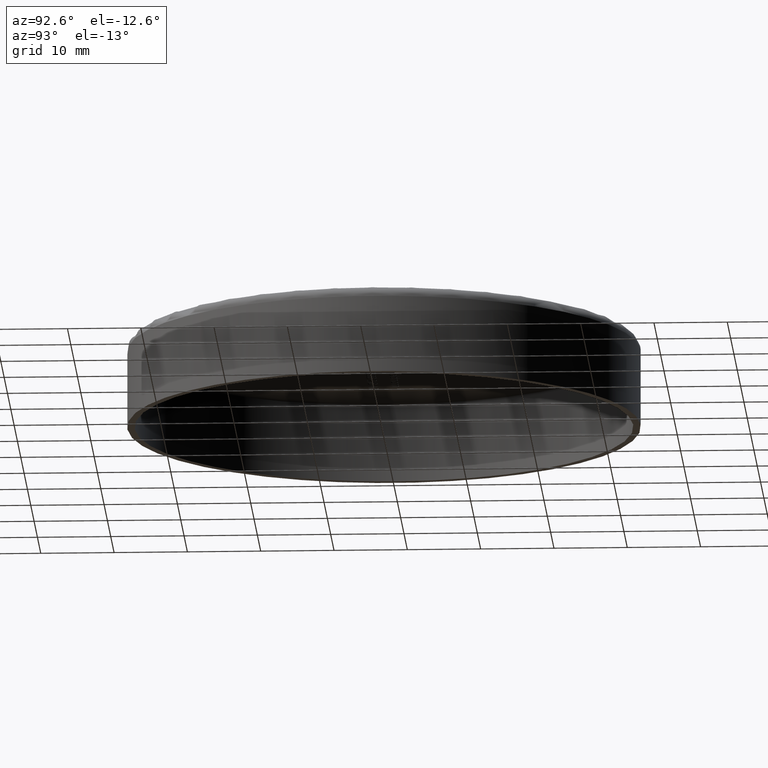
[diagram: clean part render]
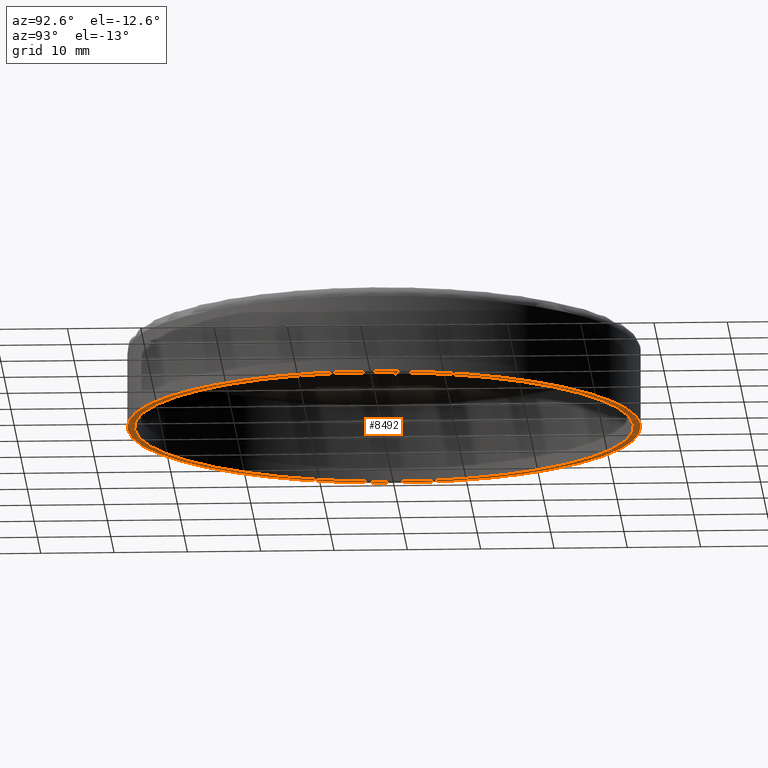
[diagram: same view with one face highlighted and labeled with its STEP entity id]
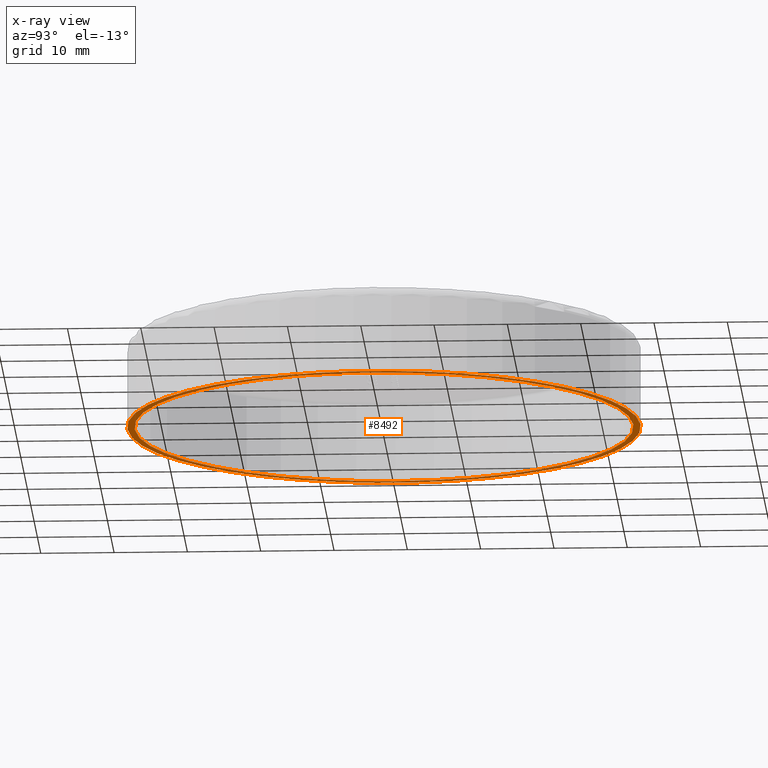
[diagram: x-ray of the same camera — body ghosted, the highlighted face saturated]
A machine part, auxiliary view. The second image highlights one B-rep face of the part: STEP entity #8492.
The next image is the same camera in x-ray: the body ghosted, the highlighted face saturated — about 0% of this face is hidden behind the body in this view.
In plain terms, the highlighted planar face has unit normal (0, -0, 1).
Its self-contained STEP definition (entity closure, byte-faithful):
#12 = VERTEX_POINT ( 'NONE', #9346 ) ;
#237 = DIRECTION ( 'NONE',  ( 0.000000000000000000, 1.000000000000000000, 1.224646799147353454E-16 ) ) ;
#683 = AXIS2_PLACEMENT_3D ( 'NONE', #12895, #3625, #12805 ) ;
#1169 = ORIENTED_EDGE ( 'NONE', *, *, #13925, .F. ) ;
#2770 = DIRECTION ( 'NONE',  ( -0.000000000000000000, 1.224646799147353454E-16, -1.000000000000000000 ) ) ;
#2790 = ORIENTED_EDGE ( 'NONE', *, *, #10253, .F. ) ;
#3416 = AXIS2_PLACEMENT_3D ( 'NONE', #5751, #7394, #8832 ) ;
#3625 = DIRECTION ( 'NONE',  ( 0.000000000000000000, -1.224646799147353454E-16, 1.000000000000000000 ) ) ;
#3902 = EDGE_LOOP ( 'NONE', ( #1169, #2790 ) ) ;
#4142 = EDGE_CURVE ( 'NONE', #12, #4572, #4149, .T. ) ;
#4149 = CIRCLE ( 'NONE', #11156, 35.00000000000000000 ) ;
#4331 = CARTESIAN_POINT ( 'NONE',  ( 0.000000000000000000, -5.099183261050318056E-31, 4.163799117101001348E-15 ) ) ;
#4572 = VERTEX_POINT ( 'NONE', #11401 ) ;
#5751 = CARTESIAN_POINT ( 'NONE',  ( 0.000000000000000000, -5.249159239316504474E-31, 4.286263797015737285E-15 ) ) ;
#7083 = PLANE ( 'NONE',  #683 ) ;
#7164 = CARTESIAN_POINT ( 'NONE',  ( 0.000000000000000000, -5.099183261050318056E-31, 4.163799117101001348E-15 ) ) ;
#7394 = DIRECTION ( 'NONE',  ( -0.000000000000000000, 1.224646799147353454E-16, -1.000000000000000000 ) ) ;
#8111 = EDGE_CURVE ( 'NONE', #4572, #12, #10623, .T. ) ;
#8262 = CARTESIAN_POINT ( 'NONE',  ( 0.000000000000000000, 34.00000000000000000, 8.327598234202002696E-15 ) ) ;
#8492 = ADVANCED_FACE ( 'NONE', ( #13353, #10257 ), #7083, .F. ) ;
#8832 = DIRECTION ( 'NONE',  ( 0.000000000000000000, 1.000000000000000000, 1.224646799147353454E-16 ) ) ;
#9094 = CIRCLE ( 'NONE', #11589, 34.00000000000000000 ) ;
#9233 = DIRECTION ( 'NONE',  ( 0.000000000000000000, 1.000000000000000000, 1.224646799147353454E-16 ) ) ;
#9346 = CARTESIAN_POINT ( 'NONE',  ( 4.286263797015736496E-15, -35.00000000000000000, 0.000000000000000000 ) ) ;
#10138 = DIRECTION ( 'NONE',  ( -0.000000000000000000, 1.224646799147353454E-16, -1.000000000000000000 ) ) ;
#10253 = EDGE_CURVE ( 'NONE', #11588, #11578, #12055, .T. ) ;
#10257 = FACE_OUTER_BOUND ( 'NONE', #11592, .T. ) ;
#10377 = CARTESIAN_POINT ( 'NONE',  ( 4.163799117101000559E-15, -34.00000000000000000, 0.000000000000000000 ) ) ;
#10623 = CIRCLE ( 'NONE', #3416, 35.00000000000000000 ) ;
#10865 = DIRECTION ( 'NONE',  ( 0.000000000000000000, 1.000000000000000000, 1.224646799147353454E-16 ) ) ;
#11156 = AXIS2_PLACEMENT_3D ( 'NONE', #13266, #2770, #10865 ) ;
#11264 = ORIENTED_EDGE ( 'NONE', *, *, #4142, .T. ) ;
#11401 = CARTESIAN_POINT ( 'NONE',  ( 0.000000000000000000, 35.00000000000000000, 8.572527594031474570E-15 ) ) ;
#11578 = VERTEX_POINT ( 'NONE', #8262 ) ;
#11588 = VERTEX_POINT ( 'NONE', #10377 ) ;
#11589 = AXIS2_PLACEMENT_3D ( 'NONE', #7164, #13066, #237 ) ;
#11592 = EDGE_LOOP ( 'NONE', ( #13143, #11264 ) ) ;
#12055 = CIRCLE ( 'NONE', #13146, 34.00000000000000000 ) ;
#12805 = DIRECTION ( 'NONE',  ( 0.000000000000000000, -1.000000000000000000, -1.224646799147353454E-16 ) ) ;
#12895 = CARTESIAN_POINT ( 'NONE',  ( 0.000000000000000000, -35.00000000000000000, -6.123233995736773431E-17 ) ) ;
#13066 = DIRECTION ( 'NONE',  ( -0.000000000000000000, 1.224646799147353454E-16, -1.000000000000000000 ) ) ;
#13143 = ORIENTED_EDGE ( 'NONE', *, *, #8111, .T. ) ;
#13146 = AXIS2_PLACEMENT_3D ( 'NONE', #4331, #10138, #9233 ) ;
#13266 = CARTESIAN_POINT ( 'NONE',  ( 0.000000000000000000, -5.249159239316504474E-31, 4.286263797015737285E-15 ) ) ;
#13353 = FACE_BOUND ( 'NONE', #3902, .T. ) ;
#13925 = EDGE_CURVE ( 'NONE', #11578, #11588, #9094, .T. ) ;